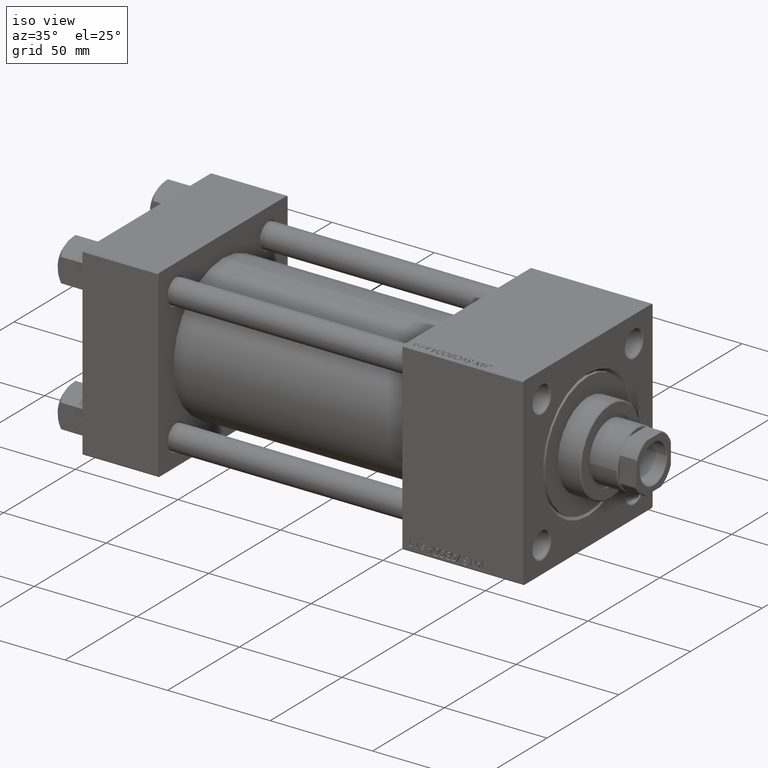
[diagram: clean part render]
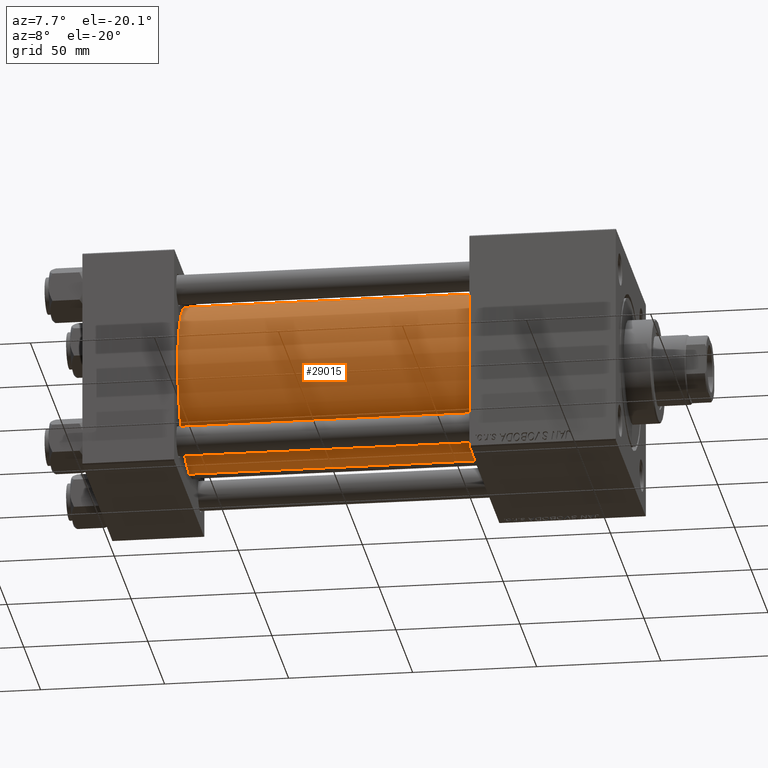
[diagram: tour spotlight — one face highlighted and labeled with its STEP entity id]
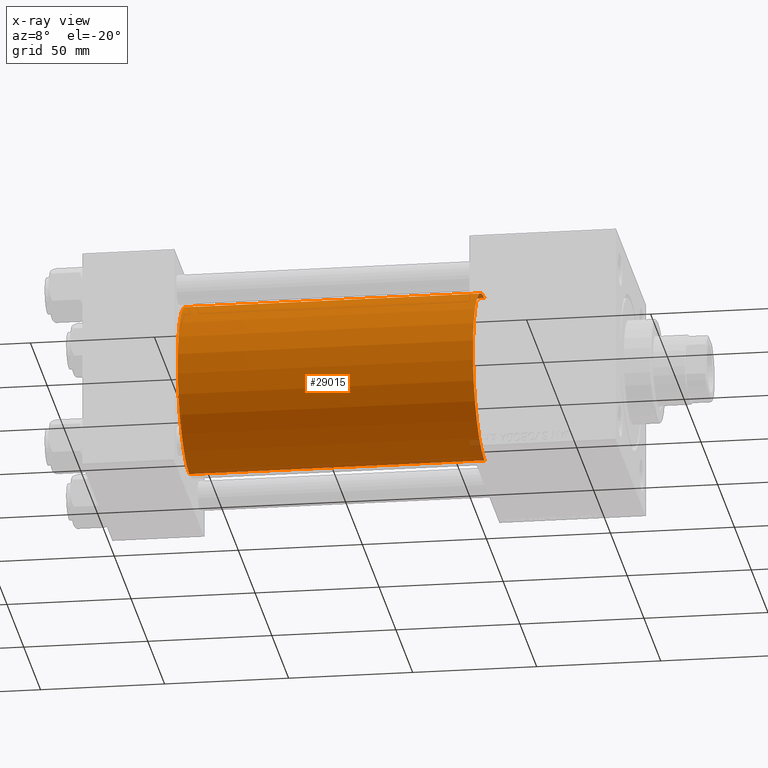
[diagram: x-ray of the same camera — body ghosted, this tour face saturated]
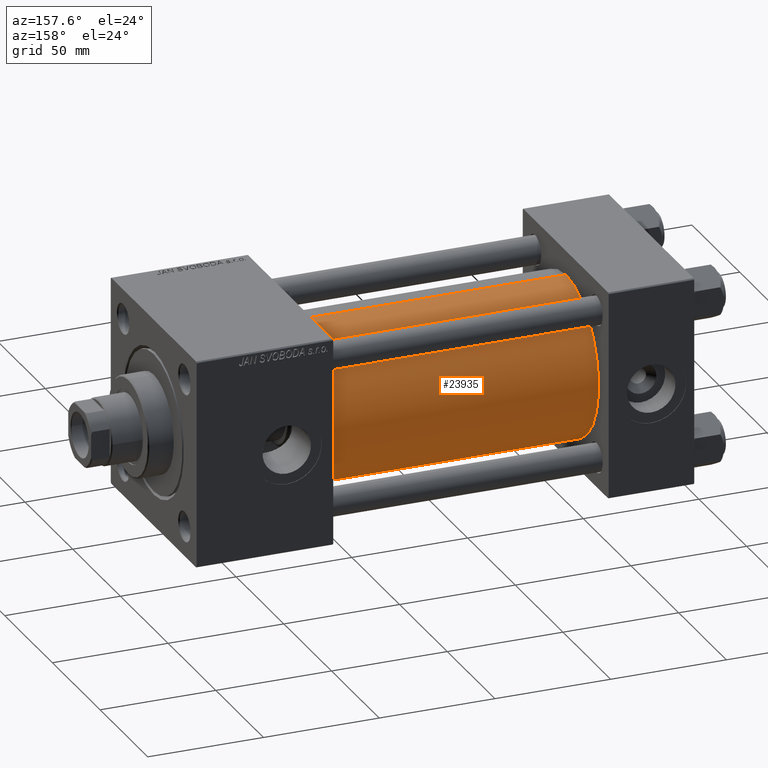
[diagram: tour spotlight — one face highlighted and labeled with its STEP entity id]
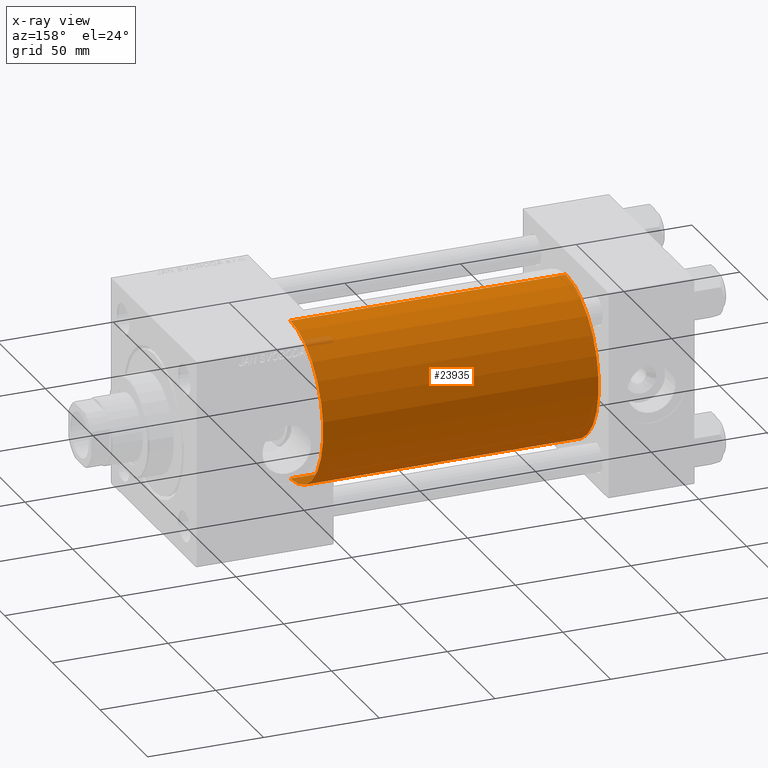
[diagram: x-ray of the same camera — body ghosted, this tour face saturated]
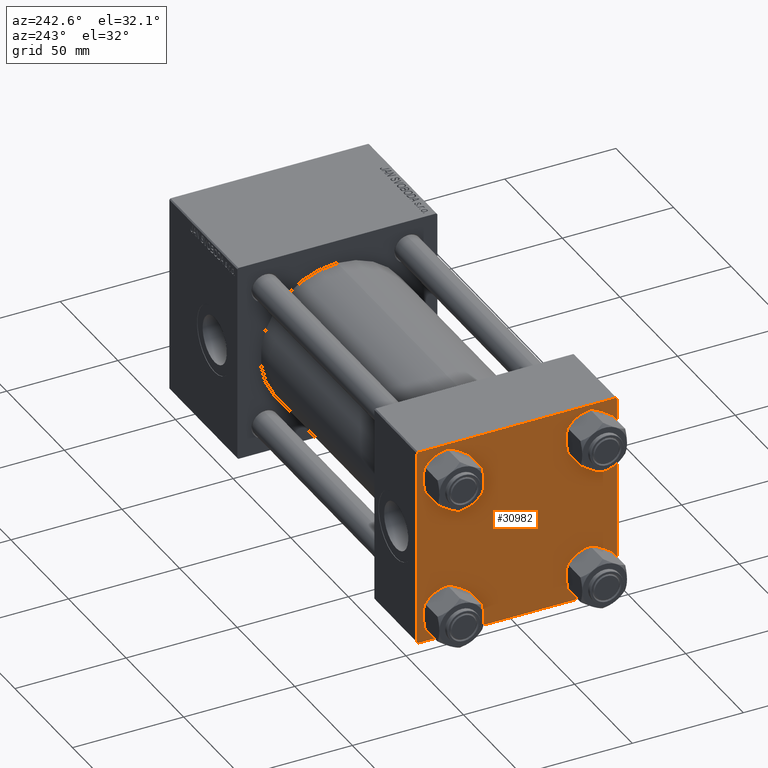
[diagram: tour spotlight — one face highlighted and labeled with its STEP entity id]
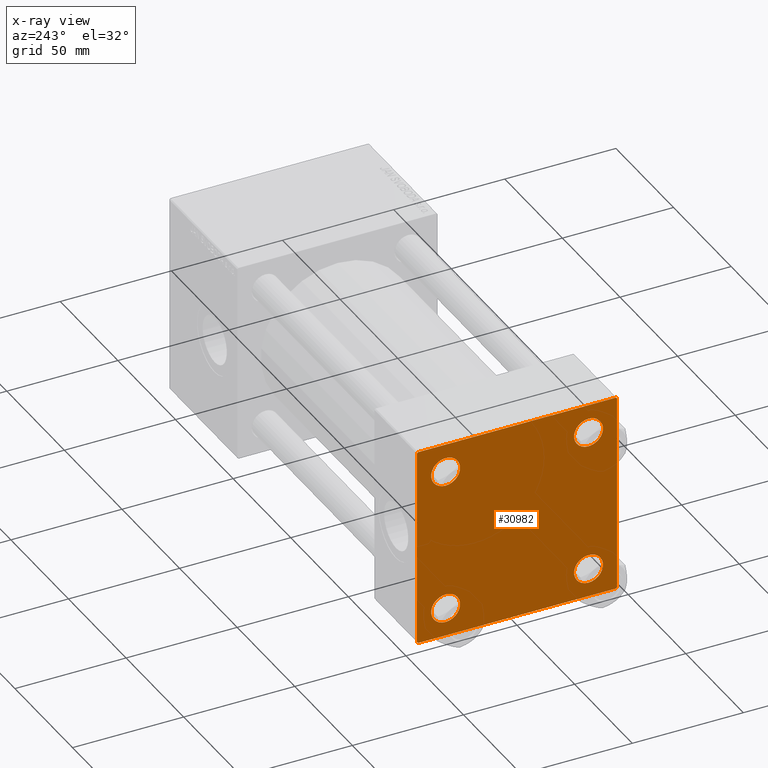
[diagram: x-ray of the same camera — body ghosted, this tour face saturated]
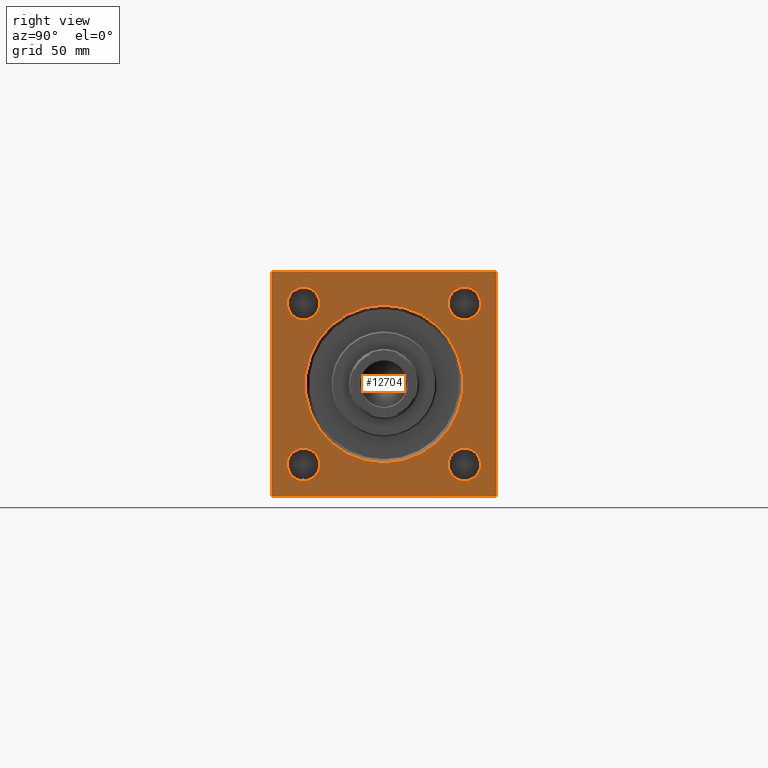
[diagram: tour spotlight — one face highlighted and labeled with its STEP entity id]
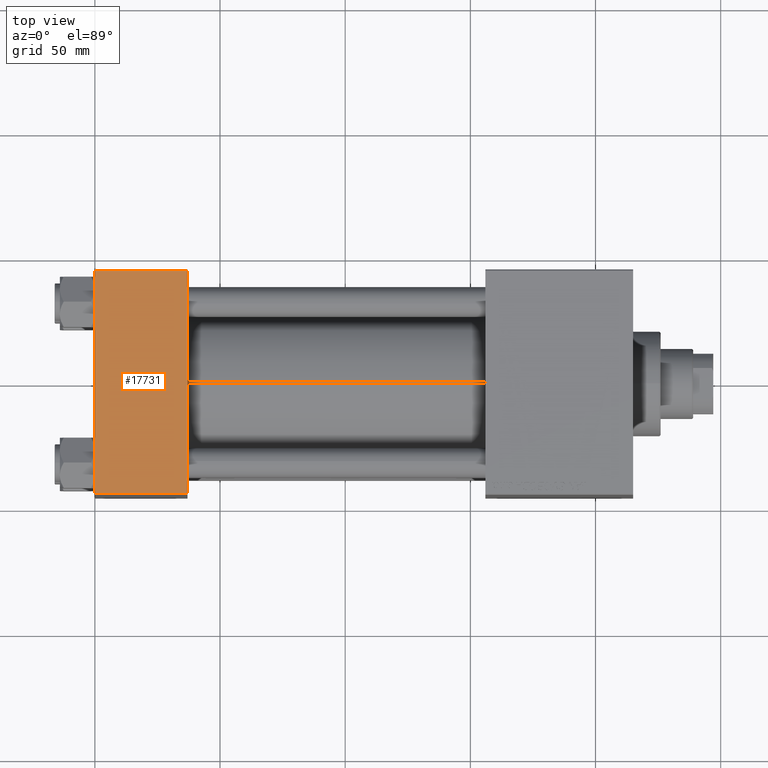
[diagram: tour spotlight — one face highlighted and labeled with its STEP entity id]
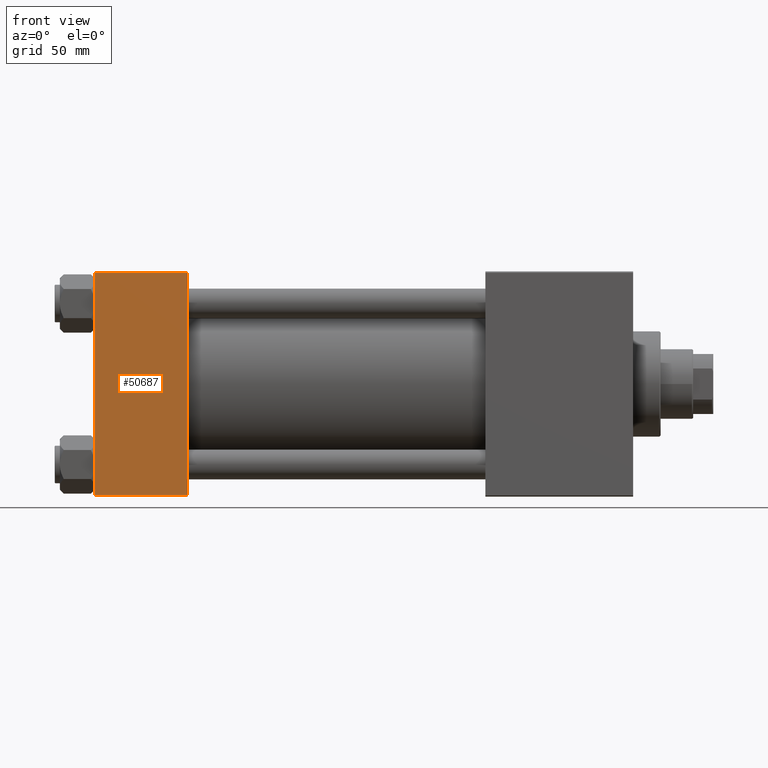
[diagram: tour spotlight — one face highlighted and labeled with its STEP entity id]
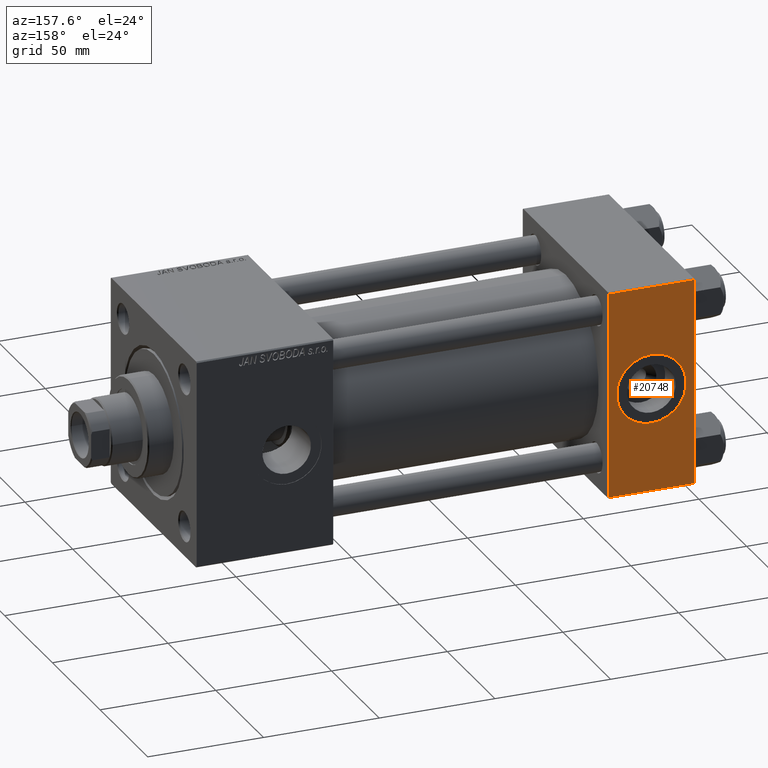
[diagram: tour spotlight — one face highlighted and labeled with its STEP entity id]
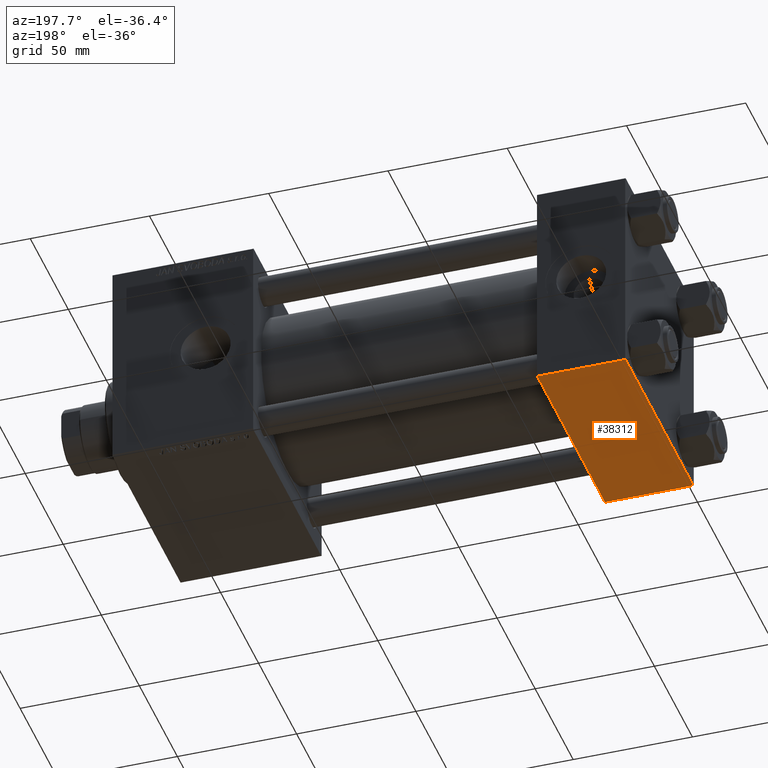
[diagram: tour spotlight — one face highlighted and labeled with its STEP entity id]
A machine part: a face-by-face anatomy tour. The part has 1182 B-rep faces; the first image is the clean iso view, then the 8 largest visible faces are spotlighted one at a time (largest first), each with its STEP entity span.

Face 1 — auxiliary view, entity #29015. An x-ray twin of the same camera follows (body ghosted, this face saturated) — the face is partly hidden behind the body. In plain terms, the highlighted cylindrical surface (partial cylindrical patch) has radius 34.5 mm, axis along (-1, -0, -0).
Definition (entity closure, byte-faithful):
#31 = LINE ( 'NONE', #556, #48640 ) ;
#556 = CARTESIAN_POINT ( 'NONE',  ( 156.0000000000000000, 1.622946243093158675E-15, -34.50000000000000000 ) ) ;
#1071 = DIRECTION ( 'NONE',  ( -1.000000000000000000, -0.000000000000000000, -0.000000000000000000 ) ) ;
#2619 = ORIENTED_EDGE ( 'NONE', *, *, #31752, .T. ) ;
#2702 = DIRECTION ( 'NONE',  ( -1.000000000000000000, -0.000000000000000000, -0.000000000000000000 ) ) ;
#3413 = DIRECTION ( 'NONE',  ( 1.000000000000000000, 0.000000000000000000, 0.000000000000000000 ) ) ;
#4380 = VERTEX_POINT ( 'NONE', #9038 ) ;
#5690 = VECTOR ( 'NONE', #1071, 1000.000000000000000 ) ;
#6608 = CARTESIAN_POINT ( 'NONE',  ( 156.0000000000000000, -2.602085213965210642E-15, 0.000000000000000000 ) ) ;
#6866 = DIRECTION ( 'NONE',  ( 0.000000000000000000, 0.000000000000000000, 1.000000000000000000 ) ) ;
#7864 = DIRECTION ( 'NONE',  ( 1.000000000000000000, -0.000000000000000000, 0.000000000000000000 ) ) ;
#9011 = AXIS2_PLACEMENT_3D ( 'NONE', #23401, #3413, #18998 ) ;
#9038 = CARTESIAN_POINT ( 'NONE',  ( 37.00000000000000711, 1.622946243093158675E-15, -34.50000000000000000 ) ) ;
#10213 = AXIS2_PLACEMENT_3D ( 'NONE', #25438, #7864, #31474 ) ;
#11007 = CYLINDRICAL_SURFACE ( 'NONE', #45444, 34.50000000000000000 ) ;
#18251 = EDGE_CURVE ( 'NONE', #29535, #4380, #26797, .T. ) ;
#18998 = DIRECTION ( 'NONE',  ( 0.000000000000000000, 0.000000000000000000, -1.000000000000000000 ) ) ;
#21760 = CARTESIAN_POINT ( 'NONE',  ( 156.0000000000000000, 1.622946243093158675E-15, -34.50000000000000000 ) ) ;
#23401 = CARTESIAN_POINT ( 'NONE',  ( 156.0000000000000000, -2.602085213965210642E-15, 0.000000000000000000 ) ) ;
#23629 = VERTEX_POINT ( 'NONE', #23703 ) ;
#23703 = CARTESIAN_POINT ( 'NONE',  ( 156.0000000000000000, -2.602085213965210642E-15, 34.50000000000000000 ) ) ;
#23766 = ORIENTED_EDGE ( 'NONE', *, *, #18251, .T. ) ;
#24280 = VERTEX_POINT ( 'NONE', #21760 ) ;
#25438 = CARTESIAN_POINT ( 'NONE',  ( 37.00000000000000711, -2.602085213965210642E-15, 0.000000000000000000 ) ) ;
#26630 = EDGE_CURVE ( 'NONE', #24280, #4380, #31, .T. ) ;
#26797 = CIRCLE ( 'NONE', #10213, 34.50000000000000000 ) ;
#29015 = ADVANCED_FACE ( 'NONE', ( #46607 ), #11007, .T. ) ;
#29535 = VERTEX_POINT ( 'NONE', #50447 ) ;
#30592 = ORIENTED_EDGE ( 'NONE', *, *, #31614, .F. ) ;
#31474 = DIRECTION ( 'NONE',  ( 0.000000000000000000, 0.000000000000000000, 1.000000000000000000 ) ) ;
#31614 = EDGE_CURVE ( 'NONE', #23629, #24280, #35519, .T. ) ;
#31752 = EDGE_CURVE ( 'NONE', #23629, #29535, #34213, .T. ) ;
#32215 = DIRECTION ( 'NONE',  ( -1.000000000000000000, -0.000000000000000000, -0.000000000000000000 ) ) ;
#32724 = ORIENTED_EDGE ( 'NONE', *, *, #26630, .F. ) ;
#34213 = LINE ( 'NONE', #36898, #5690 ) ;
#35519 = CIRCLE ( 'NONE', #9011, 34.50000000000000000 ) ;
#36898 = CARTESIAN_POINT ( 'NONE',  ( 156.0000000000000000, -2.602085213965210642E-15, 34.50000000000000000 ) ) ;
#43891 = EDGE_LOOP ( 'NONE', ( #32724, #30592, #2619, #23766 ) ) ;
#45444 = AXIS2_PLACEMENT_3D ( 'NONE', #6608, #2702, #6866 ) ;
#46607 = FACE_OUTER_BOUND ( 'NONE', #43891, .T. ) ;
#48640 = VECTOR ( 'NONE', #32215, 1000.000000000000000 ) ;
#50447 = CARTESIAN_POINT ( 'NONE',  ( 37.00000000000000711, -2.602085213965210642E-15, 34.50000000000000000 ) ) ;

Face 2 — auxiliary view, entity #23935. An x-ray twin of the same camera follows (body ghosted, this face saturated) — the face is partly hidden behind the body. In plain terms, the highlighted cylindrical surface (partial cylindrical patch) has radius 34.5 mm, axis along (-1, -0, -0).
Definition (entity closure, byte-faithful):
#31 = LINE ( 'NONE', #556, #48640 ) ;
#556 = CARTESIAN_POINT ( 'NONE',  ( 156.0000000000000000, 1.622946243093158675E-15, -34.50000000000000000 ) ) ;
#1071 = DIRECTION ( 'NONE',  ( -1.000000000000000000, -0.000000000000000000, -0.000000000000000000 ) ) ;
#4380 = VERTEX_POINT ( 'NONE', #9038 ) ;
#5690 = VECTOR ( 'NONE', #1071, 1000.000000000000000 ) ;
#7133 = DIRECTION ( 'NONE',  ( 1.000000000000000000, 0.000000000000000000, 0.000000000000000000 ) ) ;
#9038 = CARTESIAN_POINT ( 'NONE',  ( 37.00000000000000711, 1.622946243093158675E-15, -34.50000000000000000 ) ) ;
#12990 = FACE_OUTER_BOUND ( 'NONE', #21706, .T. ) ;
#13577 = CIRCLE ( 'NONE', #49289, 34.50000000000000000 ) ;
#14524 = ORIENTED_EDGE ( 'NONE', *, *, #22144, .T. ) ;
#16573 = ORIENTED_EDGE ( 'NONE', *, *, #31752, .F. ) ;
#19721 = EDGE_CURVE ( 'NONE', #24280, #23629, #13577, .T. ) ;
#20705 = ORIENTED_EDGE ( 'NONE', *, *, #19721, .F. ) ;
#20789 = CARTESIAN_POINT ( 'NONE',  ( 156.0000000000000000, -2.602085213965210642E-15, 0.000000000000000000 ) ) ;
#21320 = ORIENTED_EDGE ( 'NONE', *, *, #26630, .T. ) ;
#21706 = EDGE_LOOP ( 'NONE', ( #20705, #21320, #14524, #16573 ) ) ;
#21760 = CARTESIAN_POINT ( 'NONE',  ( 156.0000000000000000, 1.622946243093158675E-15, -34.50000000000000000 ) ) ;
#22144 = EDGE_CURVE ( 'NONE', #4380, #29535, #46008, .T. ) ;
#23629 = VERTEX_POINT ( 'NONE', #23703 ) ;
#23703 = CARTESIAN_POINT ( 'NONE',  ( 156.0000000000000000, -2.602085213965210642E-15, 34.50000000000000000 ) ) ;
#23935 = ADVANCED_FACE ( 'NONE', ( #12990 ), #24930, .T. ) ;
#24280 = VERTEX_POINT ( 'NONE', #21760 ) ;
#24930 = CYLINDRICAL_SURFACE ( 'NONE', #47739, 34.50000000000000000 ) ;
#26630 = EDGE_CURVE ( 'NONE', #24280, #4380, #31, .T. ) ;
#29535 = VERTEX_POINT ( 'NONE', #50447 ) ;
#30138 = DIRECTION ( 'NONE',  ( 0.000000000000000000, 0.000000000000000000, 1.000000000000000000 ) ) ;
#31752 = EDGE_CURVE ( 'NONE', #23629, #29535, #34213, .T. ) ;
#32215 = DIRECTION ( 'NONE',  ( -1.000000000000000000, -0.000000000000000000, -0.000000000000000000 ) ) ;
#34213 = LINE ( 'NONE', #36898, #5690 ) ;
#36898 = CARTESIAN_POINT ( 'NONE',  ( 156.0000000000000000, -2.602085213965210642E-15, 34.50000000000000000 ) ) ;
#39326 = CARTESIAN_POINT ( 'NONE',  ( 156.0000000000000000, -2.602085213965210642E-15, 0.000000000000000000 ) ) ;
#40574 = CARTESIAN_POINT ( 'NONE',  ( 37.00000000000000711, -2.602085213965210642E-15, 0.000000000000000000 ) ) ;
#44332 = AXIS2_PLACEMENT_3D ( 'NONE', #40574, #45768, #30138 ) ;
#45768 = DIRECTION ( 'NONE',  ( 1.000000000000000000, -0.000000000000000000, 0.000000000000000000 ) ) ;
#46008 = CIRCLE ( 'NONE', #44332, 34.50000000000000000 ) ;
#47739 = AXIS2_PLACEMENT_3D ( 'NONE', #20789, #49635, #49124 ) ;
#48640 = VECTOR ( 'NONE', #32215, 1000.000000000000000 ) ;
#49124 = DIRECTION ( 'NONE',  ( 0.000000000000000000, 0.000000000000000000, 1.000000000000000000 ) ) ;
#49289 = AXIS2_PLACEMENT_3D ( 'NONE', #39326, #7133, #50781 ) ;
#49635 = DIRECTION ( 'NONE',  ( -1.000000000000000000, -0.000000000000000000, -0.000000000000000000 ) ) ;
#50447 = CARTESIAN_POINT ( 'NONE',  ( 37.00000000000000711, -2.602085213965210642E-15, 34.50000000000000000 ) ) ;
#50781 = DIRECTION ( 'NONE',  ( 0.000000000000000000, 0.000000000000000000, -1.000000000000000000 ) ) ;

Face 3 — auxiliary view, entity #30982. An x-ray twin of the same camera follows (body ghosted, this face saturated) — the face is partly hidden behind the body. In plain terms, the highlighted planar face has unit normal (-1, 0, 0).
Definition (entity closure, byte-faithful):
#1029 = EDGE_LOOP ( 'NONE', ( #16488, #17004 ) ) ;
#1039 = ORIENTED_EDGE ( 'NONE', *, *, #2225, .T. ) ;
#1574 = CARTESIAN_POINT ( 'NONE',  ( 0.000000000000000000, -32.14999999999997726, -32.15000000000001279 ) ) ;
#2140 = EDGE_CURVE ( 'NONE', #33545, #14707, #22920, .T. ) ;
#2186 = EDGE_CURVE ( 'NONE', #46970, #41015, #4077, .T. ) ;
#2225 = EDGE_CURVE ( 'NONE', #28891, #3553, #25676, .T. ) ;
#3553 = VERTEX_POINT ( 'NONE', #41171 ) ;
#3731 = EDGE_CURVE ( 'NONE', #46404, #49130, #17196, .T. ) ;
#3784 = EDGE_CURVE ( 'NONE', #25651, #17943, #43102, .T. ) ;
#4077 = CIRCLE ( 'NONE', #49738, 6.500000000000019540 ) ;
#5364 = CIRCLE ( 'NONE', #6187, 6.499999999999977796 ) ;
#5848 = CARTESIAN_POINT ( 'NONE',  ( 0.000000000000000000, 44.99999999999998579, -44.49999999999995737 ) ) ;
#6187 = AXIS2_PLACEMENT_3D ( 'NONE', #26881, #31524, #47159 ) ;
#7326 = ORIENTED_EDGE ( 'NONE', *, *, #41993, .T. ) ;
#8008 = ORIENTED_EDGE ( 'NONE', *, *, #24776, .T. ) ;
#8012 = LINE ( 'NONE', #16578, #41771 ) ;
#8136 = LINE ( 'NONE', #39073, #18961 ) ;
#8218 = CARTESIAN_POINT ( 'NONE',  ( 0.000000000000000000, -32.14999999999997726, -38.64999999999999147 ) ) ;
#8565 = CIRCLE ( 'NONE', #29331, 6.499999999999977796 ) ;
#9144 = LINE ( 'NONE', #12519, #50140 ) ;
#10055 = VECTOR ( 'NONE', #12528, 1000.000000000000114 ) ;
#10199 = EDGE_LOOP ( 'NONE', ( #22674, #32191 ) ) ;
#10430 = CARTESIAN_POINT ( 'NONE',  ( 0.000000000000000000, 44.49999999999998579, 45.00000000000001421 ) ) ;
#10573 = VERTEX_POINT ( 'NONE', #8218 ) ;
#11271 = AXIS2_PLACEMENT_3D ( 'NONE', #1574, #25461, #45482 ) ;
#11468 = CARTESIAN_POINT ( 'NONE',  ( 0.000000000000000000, 44.99999999999998579, 44.50000000000001421 ) ) ;
#12048 = DIRECTION ( 'NONE',  ( 0.000000000000000000, 0.7071067811865474617, -0.7071067811865474617 ) ) ;
#12519 = CARTESIAN_POINT ( 'NONE',  ( 0.000000000000000000, -44.74999999999998579, -44.74999999999998579 ) ) ;
#12528 = DIRECTION ( 'NONE',  ( -0.000000000000000000, -0.7071067811865474617, -0.7071067811865474617 ) ) ;
#12684 = DIRECTION ( 'NONE',  ( 1.000000000000000000, -0.000000000000000000, 0.000000000000000000 ) ) ;
#12784 = CARTESIAN_POINT ( 'NONE',  ( 0.000000000000000000, 44.74999999999998579, -44.74999999999998579 ) ) ;
#12787 = DIRECTION ( 'NONE',  ( 1.000000000000000000, -0.000000000000000000, 0.000000000000000000 ) ) ;
#13322 = VERTEX_POINT ( 'NONE', #10430 ) ;
#13749 = CARTESIAN_POINT ( 'NONE',  ( 0.000000000000000000, -32.14999999999997726, 32.15000000000001279 ) ) ;
#13825 = CARTESIAN_POINT ( 'NONE',  ( 0.000000000000000000, 32.14999999999999147, -32.15000000000000568 ) ) ;
#14573 = CIRCLE ( 'NONE', #24530, 6.499999999999977796 ) ;
#14707 = VERTEX_POINT ( 'NONE', #14972 ) ;
#14909 = ORIENTED_EDGE ( 'NONE', *, *, #3731, .F. ) ;
#14972 = CARTESIAN_POINT ( 'NONE',  ( 0.000000000000000000, -44.49999999999995737, -45.00000000000000000 ) ) ;
#15106 = CARTESIAN_POINT ( 'NONE',  ( 0.000000000000000000, 32.14999999999999147, -32.15000000000000568 ) ) ;
#15279 = CARTESIAN_POINT ( 'NONE',  ( 0.000000000000000000, -32.14999999999997726, -25.65000000000003411 ) ) ;
#15998 = DIRECTION ( 'NONE',  ( -0.000000000000000000, 0.000000000000000000, 1.000000000000000000 ) ) ;
#16142 = VECTOR ( 'NONE', #33023, 1000.000000000000114 ) ;
#16258 = FACE_OUTER_BOUND ( 'NONE', #16909, .T. ) ;
#16418 = AXIS2_PLACEMENT_3D ( 'NONE', #44323, #32074, #15998 ) ;
#16488 = ORIENTED_EDGE ( 'NONE', *, *, #20096, .T. ) ;
#16578 = CARTESIAN_POINT ( 'NONE',  ( 0.000000000000000000, 44.99999999999998579, 45.00000000000001421 ) ) ;
#16836 = ORIENTED_EDGE ( 'NONE', *, *, #48833, .T. ) ;
#16909 = EDGE_LOOP ( 'NONE', ( #27517, #7326, #45631, #16836, #14909, #20565, #18077, #25499 ) ) ;
#17004 = ORIENTED_EDGE ( 'NONE', *, *, #3784, .T. ) ;
#17037 = FACE_BOUND ( 'NONE', #35290, .T. ) ;
#17196 = LINE ( 'NONE', #37449, #22364 ) ;
#17198 = CARTESIAN_POINT ( 'NONE',  ( -0.000000000000000000, -44.75000000000029843, 44.74999999999967315 ) ) ;
#17641 = DIRECTION ( 'NONE',  ( 0.000000000000000000, 0.000000000000000000, 1.000000000000000000 ) ) ;
#17851 = DIRECTION ( 'NONE',  ( 0.000000000000000000, 0.000000000000000000, 1.000000000000000000 ) ) ;
#17943 = VERTEX_POINT ( 'NONE', #22904 ) ;
#18077 = ORIENTED_EDGE ( 'NONE', *, *, #33227, .F. ) ;
#18961 = VECTOR ( 'NONE', #20348, 1000.000000000000000 ) ;
#19407 = CIRCLE ( 'NONE', #48475, 6.500000000000019540 ) ;
#19530 = CIRCLE ( 'NONE', #11271, 6.499999999999977796 ) ;
#20096 = EDGE_CURVE ( 'NONE', #17943, #25651, #8565, .T. ) ;
#20310 = EDGE_CURVE ( 'NONE', #34404, #20808, #8012, .T. ) ;
#20348 = DIRECTION ( 'NONE',  ( 0.000000000000000000, -1.000000000000000000, -1.541976423090495387E-16 ) ) ;
#20565 = ORIENTED_EDGE ( 'NONE', *, *, #49990, .T. ) ;
#20808 = VERTEX_POINT ( 'NONE', #5848 ) ;
#20991 = ORIENTED_EDGE ( 'NONE', *, *, #21726, .T. ) ;
#21726 = EDGE_CURVE ( 'NONE', #42508, #10573, #5364, .T. ) ;
#22334 = AXIS2_PLACEMENT_3D ( 'NONE', #44220, #41795, #17641 ) ;
#22364 = VECTOR ( 'NONE', #33022, 1000.000000000000000 ) ;
#22674 = ORIENTED_EDGE ( 'NONE', *, *, #2186, .T. ) ;
#22904 = CARTESIAN_POINT ( 'NONE',  ( 0.000000000000000000, 32.14999999999999147, -25.65000000000002700 ) ) ;
#22920 = LINE ( 'NONE', #38783, #38094 ) ;
#23932 = DIRECTION ( 'NONE',  ( 0.000000000000000000, -0.7071067811865474617, 0.7071067811865474617 ) ) ;
#24203 = LINE ( 'NONE', #12784, #10055 ) ;
#24530 = AXIS2_PLACEMENT_3D ( 'NONE', #27483, #12684, #35790 ) ;
#24776 = EDGE_CURVE ( 'NONE', #10573, #42508, #19530, .T. ) ;
#24953 = EDGE_CURVE ( 'NONE', #3553, #28891, #14573, .T. ) ;
#25048 = VECTOR ( 'NONE', #12048, 1000.000000000000114 ) ;
#25283 = CARTESIAN_POINT ( 'NONE',  ( 0.000000000000000000, 32.14999999999999147, -38.64999999999998437 ) ) ;
#25376 = CARTESIAN_POINT ( 'NONE',  ( 0.000000000000000000, -32.14999999999997726, 32.15000000000001279 ) ) ;
#25461 = DIRECTION ( 'NONE',  ( 1.000000000000000000, -0.000000000000000000, 0.000000000000000000 ) ) ;
#25499 = ORIENTED_EDGE ( 'NONE', *, *, #44214, .T. ) ;
#25629 = DIRECTION ( 'NONE',  ( 1.000000000000000000, -0.000000000000000000, 0.000000000000000000 ) ) ;
#25651 = VERTEX_POINT ( 'NONE', #25283 ) ;
#25676 = CIRCLE ( 'NONE', #22334, 6.499999999999977796 ) ;
#26563 = CARTESIAN_POINT ( 'NONE',  ( 0.000000000000000000, -32.14999999999997726, 25.64999999999999147 ) ) ;
#26798 = CARTESIAN_POINT ( 'NONE',  ( 0.000000000000000000, -32.14999999999997726, 38.65000000000003411 ) ) ;
#26881 = CARTESIAN_POINT ( 'NONE',  ( 0.000000000000000000, -32.14999999999997726, -32.15000000000001279 ) ) ;
#27481 = DIRECTION ( 'NONE',  ( 0.000000000000000000, 0.000000000000000000, -1.000000000000000000 ) ) ;
#27483 = CARTESIAN_POINT ( 'NONE',  ( 0.000000000000000000, 32.14999999999999147, 32.15000000000000568 ) ) ;
#27517 = ORIENTED_EDGE ( 'NONE', *, *, #20310, .T. ) ;
#27928 = PLANE ( 'NONE',  #16418 ) ;
#28175 = AXIS2_PLACEMENT_3D ( 'NONE', #13825, #12787, #40590 ) ;
#28891 = VERTEX_POINT ( 'NONE', #31977 ) ;
#29331 = AXIS2_PLACEMENT_3D ( 'NONE', #15106, #34835, #35339 ) ;
#30220 = ORIENTED_EDGE ( 'NONE', *, *, #24953, .T. ) ;
#30982 = ADVANCED_FACE ( 'NONE', ( #36243, #44060, #32601, #17037, #16258 ), #27928, .T. ) ;
#31210 = DIRECTION ( 'NONE',  ( 0.000000000000000000, -1.000000000000000000, -1.541976423090495633E-16 ) ) ;
#31355 = VERTEX_POINT ( 'NONE', #39582 ) ;
#31524 = DIRECTION ( 'NONE',  ( 1.000000000000000000, -0.000000000000000000, 0.000000000000000000 ) ) ;
#31767 = LINE ( 'NONE', #47658, #25048 ) ;
#31977 = CARTESIAN_POINT ( 'NONE',  ( 0.000000000000000000, 32.14999999999999147, 25.65000000000002700 ) ) ;
#32074 = DIRECTION ( 'NONE',  ( -1.000000000000000000, 0.000000000000000000, -0.000000000000000000 ) ) ;
#32191 = ORIENTED_EDGE ( 'NONE', *, *, #49348, .T. ) ;
#32236 = DIRECTION ( 'NONE',  ( 1.000000000000000000, -0.000000000000000000, 0.000000000000000000 ) ) ;
#32601 = FACE_BOUND ( 'NONE', #1029, .T. ) ;
#33022 = DIRECTION ( 'NONE',  ( 0.000000000000000000, 7.709882115452476934E-17, -1.000000000000000000 ) ) ;
#33023 = DIRECTION ( 'NONE',  ( -0.000000000000000000, 0.7071067811865425767, 0.7071067811865524577 ) ) ;
#33227 = EDGE_CURVE ( 'NONE', #13322, #31355, #8136, .T. ) ;
#33545 = VERTEX_POINT ( 'NONE', #35584 ) ;
#34404 = VERTEX_POINT ( 'NONE', #11468 ) ;
#34835 = DIRECTION ( 'NONE',  ( 1.000000000000000000, -0.000000000000000000, 0.000000000000000000 ) ) ;
#35290 = EDGE_LOOP ( 'NONE', ( #30220, #1039 ) ) ;
#35339 = DIRECTION ( 'NONE',  ( 0.000000000000000000, 0.000000000000000000, 1.000000000000000000 ) ) ;
#35497 = CARTESIAN_POINT ( 'NONE',  ( 0.000000000000000000, -45.00000000000000000, -44.49999999999995737 ) ) ;
#35584 = CARTESIAN_POINT ( 'NONE',  ( 0.000000000000000000, 44.49999999999998579, -44.99999999999998579 ) ) ;
#35790 = DIRECTION ( 'NONE',  ( 0.000000000000000000, 0.000000000000000000, 1.000000000000000000 ) ) ;
#36243 = FACE_BOUND ( 'NONE', #10199, .T. ) ;
#36935 = LINE ( 'NONE', #17198, #16142 ) ;
#37449 = CARTESIAN_POINT ( 'NONE',  ( 0.000000000000000000, -45.00000000000000711, 45.00000000000000000 ) ) ;
#38094 = VECTOR ( 'NONE', #31210, 1000.000000000000000 ) ;
#38783 = CARTESIAN_POINT ( 'NONE',  ( 0.000000000000000000, 44.99999999999998579, -44.99999999999998579 ) ) ;
#39073 = CARTESIAN_POINT ( 'NONE',  ( 0.000000000000000000, 44.99999999999998579, 45.00000000000001421 ) ) ;
#39582 = CARTESIAN_POINT ( 'NONE',  ( 0.000000000000000000, -44.49999999999995737, 45.00000000000000000 ) ) ;
#40590 = DIRECTION ( 'NONE',  ( 0.000000000000000000, 0.000000000000000000, 1.000000000000000000 ) ) ;
#41015 = VERTEX_POINT ( 'NONE', #26563 ) ;
#41171 = CARTESIAN_POINT ( 'NONE',  ( 0.000000000000000000, 32.14999999999999147, 38.64999999999999147 ) ) ;
#41771 = VECTOR ( 'NONE', #27481, 1000.000000000000000 ) ;
#41795 = DIRECTION ( 'NONE',  ( 1.000000000000000000, -0.000000000000000000, 0.000000000000000000 ) ) ;
#41993 = EDGE_CURVE ( 'NONE', #20808, #33545, #24203, .T. ) ;
#42274 = CARTESIAN_POINT ( 'NONE',  ( 0.000000000000000000, -45.00000000000000711, 44.49999999999997158 ) ) ;
#42508 = VERTEX_POINT ( 'NONE', #15279 ) ;
#43102 = CIRCLE ( 'NONE', #28175, 6.499999999999977796 ) ;
#44060 = FACE_BOUND ( 'NONE', #48012, .T. ) ;
#44214 = EDGE_CURVE ( 'NONE', #13322, #34404, #31767, .T. ) ;
#44220 = CARTESIAN_POINT ( 'NONE',  ( 0.000000000000000000, 32.14999999999999147, 32.15000000000000568 ) ) ;
#44323 = CARTESIAN_POINT ( 'NONE',  ( 0.000000000000000000, 0.000000000000000000, 0.000000000000000000 ) ) ;
#45482 = DIRECTION ( 'NONE',  ( 0.000000000000000000, 0.000000000000000000, 1.000000000000000000 ) ) ;
#45631 = ORIENTED_EDGE ( 'NONE', *, *, #2140, .T. ) ;
#45704 = DIRECTION ( 'NONE',  ( 0.000000000000000000, 0.000000000000000000, 1.000000000000000000 ) ) ;
#46404 = VERTEX_POINT ( 'NONE', #42274 ) ;
#46970 = VERTEX_POINT ( 'NONE', #26798 ) ;
#47159 = DIRECTION ( 'NONE',  ( 0.000000000000000000, 0.000000000000000000, 1.000000000000000000 ) ) ;
#47658 = CARTESIAN_POINT ( 'NONE',  ( 0.000000000000000000, 44.74999999999999289, 44.74999999999999289 ) ) ;
#48012 = EDGE_LOOP ( 'NONE', ( #20991, #8008 ) ) ;
#48475 = AXIS2_PLACEMENT_3D ( 'NONE', #25376, #25629, #17851 ) ;
#48833 = EDGE_CURVE ( 'NONE', #14707, #49130, #9144, .T. ) ;
#49130 = VERTEX_POINT ( 'NONE', #35497 ) ;
#49348 = EDGE_CURVE ( 'NONE', #41015, #46970, #19407, .T. ) ;
#49738 = AXIS2_PLACEMENT_3D ( 'NONE', #13749, #32236, #45704 ) ;
#49990 = EDGE_CURVE ( 'NONE', #46404, #31355, #36935, .T. ) ;
#50140 = VECTOR ( 'NONE', #23932, 1000.000000000000114 ) ;

Face 4 — right view, entity #12704. In plain terms, the highlighted planar face has unit normal (-1, 0, 0).
Definition (entity closure, byte-faithful):
#26 = DIRECTION ( 'NONE',  ( -1.000000000000000000, -0.000000000000000000, -0.000000000000000000 ) ) ;
#191 = CARTESIAN_POINT ( 'NONE',  ( 215.0000000000000000, -32.15000000000001279, -38.64999999999999147 ) ) ;
#327 = DIRECTION ( 'NONE',  ( 0.000000000000000000, 0.000000000000000000, 1.000000000000000000 ) ) ;
#375 = CARTESIAN_POINT ( 'NONE',  ( 215.0000000000000000, 32.14999999999999147, 38.64999999999997726 ) ) ;
#395 = EDGE_CURVE ( 'NONE', #27155, #49200, #41335, .T. ) ;
#705 = CIRCLE ( 'NONE', #50515, 31.49999999999997158 ) ;
#867 = AXIS2_PLACEMENT_3D ( 'NONE', #1345, #48383, #8622 ) ;
#1170 = ORIENTED_EDGE ( 'NONE', *, *, #27704, .F. ) ;
#1254 = VERTEX_POINT ( 'NONE', #27288 ) ;
#1345 = CARTESIAN_POINT ( 'NONE',  ( 215.0000000000000000, -32.15000000000001279, -32.15000000000000568 ) ) ;
#1819 = VERTEX_POINT ( 'NONE', #25550 ) ;
#2034 = DIRECTION ( 'NONE',  ( -1.000000000000000000, -0.000000000000000000, -0.000000000000000000 ) ) ;
#2312 = EDGE_LOOP ( 'NONE', ( #31912, #47695 ) ) ;
#2760 = DIRECTION ( 'NONE',  ( -0.000000000000000000, 0.000000000000000000, 1.000000000000000000 ) ) ;
#3578 = EDGE_CURVE ( 'NONE', #11137, #1254, #18785, .T. ) ;
#4184 = CIRCLE ( 'NONE', #867, 6.499999999999977796 ) ;
#4210 = VERTEX_POINT ( 'NONE', #7491 ) ;
#4468 = CIRCLE ( 'NONE', #31801, 31.49999999999997158 ) ;
#4606 = CIRCLE ( 'NONE', #32767, 6.499999999999977796 ) ;
#4631 = DIRECTION ( 'NONE',  ( -1.000000000000000000, -0.000000000000000000, -0.000000000000000000 ) ) ;
#4791 = LINE ( 'NONE', #48969, #38745 ) ;
#4977 = CARTESIAN_POINT ( 'NONE',  ( 215.0000000000000000, 32.14999999999999147, -38.64999999999999147 ) ) ;
#5034 = EDGE_CURVE ( 'NONE', #21224, #7736, #23588, .T. ) ;
#5244 = EDGE_CURVE ( 'NONE', #6677, #13398, #29777, .T. ) ;
#5495 = VERTEX_POINT ( 'NONE', #20157 ) ;
#6468 = CARTESIAN_POINT ( 'NONE',  ( 215.0000000000000000, 0.000000000000000000, 0.000000000000000000 ) ) ;
#6677 = VERTEX_POINT ( 'NONE', #4977 ) ;
#6803 = AXIS2_PLACEMENT_3D ( 'NONE', #38857, #38347, #2760 ) ;
#7441 = EDGE_CURVE ( 'NONE', #8710, #32937, #20737, .T. ) ;
#7491 = CARTESIAN_POINT ( 'NONE',  ( 215.0000000000000000, -32.14999999999999147, 38.64999999999997016 ) ) ;
#7736 = VERTEX_POINT ( 'NONE', #18323 ) ;
#7985 = LINE ( 'NONE', #27458, #14289 ) ;
#8023 = ORIENTED_EDGE ( 'NONE', *, *, #10370, .T. ) ;
#8067 = DIRECTION ( 'NONE',  ( 0.000000000000000000, 0.000000000000000000, 1.000000000000000000 ) ) ;
#8622 = DIRECTION ( 'NONE',  ( 0.000000000000000000, 0.000000000000000000, 1.000000000000000000 ) ) ;
#8710 = VERTEX_POINT ( 'NONE', #375 ) ;
#9152 = EDGE_CURVE ( 'NONE', #49200, #27155, #4184, .T. ) ;
#9300 = DIRECTION ( 'NONE',  ( -0.000000000000000000, 0.7071067811865474617, 0.7071067811865474617 ) ) ;
#9640 = ORIENTED_EDGE ( 'NONE', *, *, #18281, .T. ) ;
#9928 = VECTOR ( 'NONE', #34627, 1000.000000000000114 ) ;
#10370 = EDGE_CURVE ( 'NONE', #1254, #47104, #46962, .T. ) ;
#10379 = VERTEX_POINT ( 'NONE', #30825 ) ;
#10796 = LINE ( 'NONE', #46397, #49999 ) ;
#11137 = VERTEX_POINT ( 'NONE', #39534 ) ;
#11316 = ORIENTED_EDGE ( 'NONE', *, *, #7441, .T. ) ;
#11566 = FACE_BOUND ( 'NONE', #23136, .T. ) ;
#12217 = VECTOR ( 'NONE', #9300, 1000.000000000000114 ) ;
#12382 = CARTESIAN_POINT ( 'NONE',  ( 215.0000000000000000, 3.857637417314158745E-15, 31.49999999999997158 ) ) ;
#12704 = ADVANCED_FACE ( 'NONE', ( #11566, #43258, #14956, #23502, #30783, #31040 ), #22488, .F. ) ;
#12827 = EDGE_LOOP ( 'NONE', ( #8023, #21821, #1170, #50398, #23600, #39385, #26830, #15193 ) ) ;
#13398 = VERTEX_POINT ( 'NONE', #23372 ) ;
#13702 = EDGE_CURVE ( 'NONE', #10379, #11137, #7985, .T. ) ;
#13958 = CARTESIAN_POINT ( 'NONE',  ( 215.0000000000000000, 45.00000000000001421, -44.50000000000000000 ) ) ;
#14110 = AXIS2_PLACEMENT_3D ( 'NONE', #41525, #26, #31692 ) ;
#14289 = VECTOR ( 'NONE', #19666, 1000.000000000000000 ) ;
#14735 = CARTESIAN_POINT ( 'NONE',  ( 215.0000000000000000, 32.14999999999999147, -32.15000000000000568 ) ) ;
#14809 = CARTESIAN_POINT ( 'NONE',  ( 215.0000000000000000, 45.00000000000001421, -45.00000000000000000 ) ) ;
#14956 = FACE_BOUND ( 'NONE', #35972, .T. ) ;
#14995 = DIRECTION ( 'NONE',  ( 0.000000000000000000, 7.709882115452478166E-17, -1.000000000000000000 ) ) ;
#15193 = ORIENTED_EDGE ( 'NONE', *, *, #3578, .T. ) ;
#15300 = DIRECTION ( 'NONE',  ( 0.000000000000000000, 0.000000000000000000, -1.000000000000000000 ) ) ;
#16243 = DIRECTION ( 'NONE',  ( 0.000000000000000000, 0.000000000000000000, 1.000000000000000000 ) ) ;
#16896 = DIRECTION ( 'NONE',  ( -1.000000000000000000, -0.000000000000000000, -0.000000000000000000 ) ) ;
#17240 = ORIENTED_EDGE ( 'NONE', *, *, #24205, .T. ) ;
#17388 = DIRECTION ( 'NONE',  ( -1.000000000000000000, -0.000000000000000000, -0.000000000000000000 ) ) ;
#17600 = ORIENTED_EDGE ( 'NONE', *, *, #9152, .T. ) ;
#18281 = EDGE_CURVE ( 'NONE', #4210, #25435, #24273, .T. ) ;
#18323 = CARTESIAN_POINT ( 'NONE',  ( 215.0000000000000000, 45.00000000000001421, -44.49999999999997158 ) ) ;
#18785 = LINE ( 'NONE', #46602, #9928 ) ;
#19465 = DIRECTION ( 'NONE',  ( 0.000000000000000000, -1.000000000000000000, 0.000000000000000000 ) ) ;
#19666 = DIRECTION ( 'NONE',  ( 0.000000000000000000, -1.000000000000000000, -1.541976423090495140E-16 ) ) ;
#20157 = CARTESIAN_POINT ( 'NONE',  ( 215.0000000000000000, 0.000000000000000000, -31.49999999999997158 ) ) ;
#20737 = CIRCLE ( 'NONE', #14110, 6.499999999999970690 ) ;
#20977 = ORIENTED_EDGE ( 'NONE', *, *, #46528, .T. ) ;
#21010 = CARTESIAN_POINT ( 'NONE',  ( 215.0000000000000000, 45.00000000000001421, 44.50000000000000000 ) ) ;
#21168 = DIRECTION ( 'NONE',  ( -1.000000000000000000, -0.000000000000000000, -0.000000000000000000 ) ) ;
#21224 = VERTEX_POINT ( 'NONE', #21010 ) ;
#21368 = VERTEX_POINT ( 'NONE', #12382 ) ;
#21821 = ORIENTED_EDGE ( 'NONE', *, *, #28668, .T. ) ;
#22224 = DIRECTION ( 'NONE',  ( 0.000000000000000000, -0.7071067811865474617, 0.7071067811865474617 ) ) ;
#22428 = ORIENTED_EDGE ( 'NONE', *, *, #395, .T. ) ;
#22480 = VECTOR ( 'NONE', #14995, 1000.000000000000000 ) ;
#22488 = PLANE ( 'NONE',  #6803 ) ;
#23009 = EDGE_LOOP ( 'NONE', ( #39364, #20977 ) ) ;
#23047 = DIRECTION ( 'NONE',  ( 0.000000000000000000, 0.000000000000000000, 1.000000000000000000 ) ) ;
#23126 = AXIS2_PLACEMENT_3D ( 'NONE', #14735, #2034, #30552 ) ;
#23136 = EDGE_LOOP ( 'NONE', ( #49012, #11316 ) ) ;
#23372 = CARTESIAN_POINT ( 'NONE',  ( 215.0000000000000000, 32.14999999999999147, -25.65000000000002700 ) ) ;
#23502 = FACE_BOUND ( 'NONE', #23009, .T. ) ;
#23511 = CARTESIAN_POINT ( 'NONE',  ( 215.0000000000000000, 0.000000000000000000, 0.000000000000000000 ) ) ;
#23588 = LINE ( 'NONE', #35523, #49689 ) ;
#23600 = ORIENTED_EDGE ( 'NONE', *, *, #5034, .F. ) ;
#24017 = DIRECTION ( 'NONE',  ( -1.000000000000000000, -0.000000000000000000, -0.000000000000000000 ) ) ;
#24205 = EDGE_CURVE ( 'NONE', #25435, #4210, #4606, .T. ) ;
#24273 = CIRCLE ( 'NONE', #32579, 6.499999999999977796 ) ;
#25067 = CARTESIAN_POINT ( 'NONE',  ( 215.0000000000000000, 32.14999999999999147, 25.65000000000003411 ) ) ;
#25435 = VERTEX_POINT ( 'NONE', #47146 ) ;
#25550 = CARTESIAN_POINT ( 'NONE',  ( 215.0000000000000000, -44.49999999999995737, -45.00000000000000000 ) ) ;
#26081 = AXIS2_PLACEMENT_3D ( 'NONE', #37516, #21168, #37776 ) ;
#26314 = EDGE_LOOP ( 'NONE', ( #17240, #9640 ) ) ;
#26609 = CARTESIAN_POINT ( 'NONE',  ( 215.0000000000000000, 44.50000000000001421, -45.00000000000000000 ) ) ;
#26830 = ORIENTED_EDGE ( 'NONE', *, *, #13702, .T. ) ;
#27155 = VERTEX_POINT ( 'NONE', #45951 ) ;
#27288 = CARTESIAN_POINT ( 'NONE',  ( 215.0000000000000000, -45.00000000000000000, 44.50000000000001421 ) ) ;
#27433 = CARTESIAN_POINT ( 'NONE',  ( 215.0000000000000000, -45.00000000000000000, 44.99999999999998579 ) ) ;
#27458 = CARTESIAN_POINT ( 'NONE',  ( 215.0000000000000000, 45.00000000000001421, 45.00000000000000000 ) ) ;
#27704 = EDGE_CURVE ( 'NONE', #36453, #1819, #47027, .T. ) ;
#27985 = CARTESIAN_POINT ( 'NONE',  ( 215.0000000000000000, -32.14999999999999147, 32.14999999999999147 ) ) ;
#28668 = EDGE_CURVE ( 'NONE', #47104, #1819, #4791, .T. ) ;
#29777 = CIRCLE ( 'NONE', #23126, 6.499999999999977796 ) ;
#29926 = EDGE_CURVE ( 'NONE', #36453, #7736, #41504, .T. ) ;
#30079 = CIRCLE ( 'NONE', #37628, 6.499999999999977796 ) ;
#30552 = DIRECTION ( 'NONE',  ( 0.000000000000000000, 0.000000000000000000, 1.000000000000000000 ) ) ;
#30783 = FACE_BOUND ( 'NONE', #2312, .T. ) ;
#30825 = CARTESIAN_POINT ( 'NONE',  ( 215.0000000000000000, 44.50000000000001421, 45.00000000000000000 ) ) ;
#31040 = FACE_OUTER_BOUND ( 'NONE', #12827, .T. ) ;
#31074 = CIRCLE ( 'NONE', #26081, 6.499999999999970690 ) ;
#31692 = DIRECTION ( 'NONE',  ( 0.000000000000000000, 0.000000000000000000, 1.000000000000000000 ) ) ;
#31801 = AXIS2_PLACEMENT_3D ( 'NONE', #6468, #34231, #23047 ) ;
#31912 = ORIENTED_EDGE ( 'NONE', *, *, #32155, .T. ) ;
#32155 = EDGE_CURVE ( 'NONE', #5495, #21368, #705, .T. ) ;
#32579 = AXIS2_PLACEMENT_3D ( 'NONE', #36869, #17388, #327 ) ;
#32767 = AXIS2_PLACEMENT_3D ( 'NONE', #27985, #4631, #48021 ) ;
#32871 = DIRECTION ( 'NONE',  ( -1.000000000000000000, -0.000000000000000000, -0.000000000000000000 ) ) ;
#32937 = VERTEX_POINT ( 'NONE', #25067 ) ;
#33602 = DIRECTION ( 'NONE',  ( 0.000000000000000000, 0.7071067811865525687, -0.7071067811865425767 ) ) ;
#34231 = DIRECTION ( 'NONE',  ( -1.000000000000000000, -0.000000000000000000, -0.000000000000000000 ) ) ;
#34627 = DIRECTION ( 'NONE',  ( -0.000000000000000000, -0.7071067811865474617, -0.7071067811865474617 ) ) ;
#35523 = CARTESIAN_POINT ( 'NONE',  ( 215.0000000000000000, 45.00000000000001421, 45.00000000000000000 ) ) ;
#35731 = DIRECTION ( 'NONE',  ( 0.000000000000000000, 0.000000000000000000, 1.000000000000000000 ) ) ;
#35972 = EDGE_LOOP ( 'NONE', ( #17600, #22428 ) ) ;
#35996 = CARTESIAN_POINT ( 'NONE',  ( 215.0000000000000000, 32.14999999999999147, -32.15000000000000568 ) ) ;
#36453 = VERTEX_POINT ( 'NONE', #26609 ) ;
#36869 = CARTESIAN_POINT ( 'NONE',  ( 215.0000000000000000, -32.14999999999999147, 32.14999999999999147 ) ) ;
#37516 = CARTESIAN_POINT ( 'NONE',  ( 215.0000000000000000, 32.14999999999999147, 32.15000000000000568 ) ) ;
#37628 = AXIS2_PLACEMENT_3D ( 'NONE', #35996, #32871, #35731 ) ;
#37776 = DIRECTION ( 'NONE',  ( 0.000000000000000000, 0.000000000000000000, 1.000000000000000000 ) ) ;
#38347 = DIRECTION ( 'NONE',  ( -1.000000000000000000, 0.000000000000000000, -0.000000000000000000 ) ) ;
#38717 = VECTOR ( 'NONE', #19465, 1000.000000000000000 ) ;
#38745 = VECTOR ( 'NONE', #33602, 999.9999999999998863 ) ;
#38857 = CARTESIAN_POINT ( 'NONE',  ( 215.0000000000000000, 0.000000000000000000, 0.000000000000000000 ) ) ;
#39364 = ORIENTED_EDGE ( 'NONE', *, *, #5244, .T. ) ;
#39385 = ORIENTED_EDGE ( 'NONE', *, *, #44877, .T. ) ;
#39534 = CARTESIAN_POINT ( 'NONE',  ( 215.0000000000000000, -44.50000000000000000, 44.99999999999998579 ) ) ;
#41335 = CIRCLE ( 'NONE', #46345, 6.499999999999977796 ) ;
#41504 = LINE ( 'NONE', #13958, #12217 ) ;
#41525 = CARTESIAN_POINT ( 'NONE',  ( 215.0000000000000000, 32.14999999999999147, 32.15000000000000568 ) ) ;
#43258 = FACE_BOUND ( 'NONE', #26314, .T. ) ;
#43676 = CARTESIAN_POINT ( 'NONE',  ( 215.0000000000000000, -44.99999999999999289, -44.49999999999997158 ) ) ;
#44877 = EDGE_CURVE ( 'NONE', #21224, #10379, #10796, .T. ) ;
#45951 = CARTESIAN_POINT ( 'NONE',  ( 215.0000000000000000, -32.15000000000001279, -25.65000000000002700 ) ) ;
#46345 = AXIS2_PLACEMENT_3D ( 'NONE', #48610, #16896, #8067 ) ;
#46397 = CARTESIAN_POINT ( 'NONE',  ( 215.0000000000000000, 44.50000000000001421, 45.00000000000000000 ) ) ;
#46528 = EDGE_CURVE ( 'NONE', #13398, #6677, #30079, .T. ) ;
#46602 = CARTESIAN_POINT ( 'NONE',  ( 215.0000000000000000, -45.00000000000000000, 44.50000000000001421 ) ) ;
#46962 = LINE ( 'NONE', #27433, #22480 ) ;
#47027 = LINE ( 'NONE', #14809, #38717 ) ;
#47104 = VERTEX_POINT ( 'NONE', #43676 ) ;
#47146 = CARTESIAN_POINT ( 'NONE',  ( 215.0000000000000000, -32.14999999999999147, 25.65000000000001279 ) ) ;
#47695 = ORIENTED_EDGE ( 'NONE', *, *, #48448, .T. ) ;
#48021 = DIRECTION ( 'NONE',  ( 0.000000000000000000, 0.000000000000000000, 1.000000000000000000 ) ) ;
#48383 = DIRECTION ( 'NONE',  ( -1.000000000000000000, -0.000000000000000000, -0.000000000000000000 ) ) ;
#48448 = EDGE_CURVE ( 'NONE', #21368, #5495, #4468, .T. ) ;
#48610 = CARTESIAN_POINT ( 'NONE',  ( 215.0000000000000000, -32.15000000000001279, -32.15000000000000568 ) ) ;
#48969 = CARTESIAN_POINT ( 'NONE',  ( 215.0000000000000000, -44.49999999999998579, -45.00000000000000000 ) ) ;
#49012 = ORIENTED_EDGE ( 'NONE', *, *, #49674, .T. ) ;
#49200 = VERTEX_POINT ( 'NONE', #191 ) ;
#49674 = EDGE_CURVE ( 'NONE', #32937, #8710, #31074, .T. ) ;
#49689 = VECTOR ( 'NONE', #15300, 1000.000000000000000 ) ;
#49999 = VECTOR ( 'NONE', #22224, 1000.000000000000114 ) ;
#50398 = ORIENTED_EDGE ( 'NONE', *, *, #29926, .T. ) ;
#50515 = AXIS2_PLACEMENT_3D ( 'NONE', #23511, #24017, #16243 ) ;

Face 5 — top view, entity #17731. In plain terms, the highlighted planar face has unit normal (0, 0, -1).
Definition (entity closure, byte-faithful):
#2247 = DIRECTION ( 'NONE',  ( 1.000000000000000000, 0.000000000000000000, 0.000000000000000000 ) ) ;
#2417 = CARTESIAN_POINT ( 'NONE',  ( 37.00000000000000000, 44.99999999999998579, 45.00000000000001421 ) ) ;
#5108 = DIRECTION ( 'NONE',  ( 0.000000000000000000, 1.000000000000000000, 1.541976423090495633E-16 ) ) ;
#6282 = LINE ( 'NONE', #50178, #13489 ) ;
#8136 = LINE ( 'NONE', #39073, #18961 ) ;
#10430 = CARTESIAN_POINT ( 'NONE',  ( 0.000000000000000000, 44.49999999999998579, 45.00000000000001421 ) ) ;
#10464 = FACE_OUTER_BOUND ( 'NONE', #31057, .T. ) ;
#11020 = AXIS2_PLACEMENT_3D ( 'NONE', #2417, #37993, #5108 ) ;
#11087 = EDGE_CURVE ( 'NONE', #39083, #13322, #42665, .T. ) ;
#11597 = EDGE_CURVE ( 'NONE', #31355, #27977, #45640, .T. ) ;
#13322 = VERTEX_POINT ( 'NONE', #10430 ) ;
#13489 = VECTOR ( 'NONE', #41599, 1000.000000000000000 ) ;
#15061 = VECTOR ( 'NONE', #2247, 1000.000000000000000 ) ;
#16276 = CARTESIAN_POINT ( 'NONE',  ( 37.00000000000000000, 44.49999999999998579, 45.00000000000001421 ) ) ;
#17731 = ADVANCED_FACE ( 'NONE', ( #10464 ), #42149, .F. ) ;
#18961 = VECTOR ( 'NONE', #20348, 1000.000000000000000 ) ;
#20348 = DIRECTION ( 'NONE',  ( 0.000000000000000000, -1.000000000000000000, -1.541976423090495387E-16 ) ) ;
#25870 = CARTESIAN_POINT ( 'NONE',  ( 37.00000000000000000, -44.49999999999998579, 45.00000000000000000 ) ) ;
#27977 = VERTEX_POINT ( 'NONE', #44665 ) ;
#28878 = ORIENTED_EDGE ( 'NONE', *, *, #11087, .T. ) ;
#30441 = CARTESIAN_POINT ( 'NONE',  ( 0.000000000000000000, 44.49999999999998579, 45.00000000000001421 ) ) ;
#31057 = EDGE_LOOP ( 'NONE', ( #47503, #40665, #34731, #28878 ) ) ;
#31355 = VERTEX_POINT ( 'NONE', #39582 ) ;
#33227 = EDGE_CURVE ( 'NONE', #13322, #31355, #8136, .T. ) ;
#34731 = ORIENTED_EDGE ( 'NONE', *, *, #45469, .F. ) ;
#37456 = VECTOR ( 'NONE', #38772, 1000.000000000000000 ) ;
#37993 = DIRECTION ( 'NONE',  ( 0.000000000000000000, 1.541976423090495633E-16, -1.000000000000000000 ) ) ;
#38772 = DIRECTION ( 'NONE',  ( -1.000000000000000000, 0.000000000000000000, 0.000000000000000000 ) ) ;
#39073 = CARTESIAN_POINT ( 'NONE',  ( 0.000000000000000000, 44.99999999999998579, 45.00000000000001421 ) ) ;
#39083 = VERTEX_POINT ( 'NONE', #16276 ) ;
#39582 = CARTESIAN_POINT ( 'NONE',  ( 0.000000000000000000, -44.49999999999995737, 45.00000000000000000 ) ) ;
#40665 = ORIENTED_EDGE ( 'NONE', *, *, #11597, .T. ) ;
#41599 = DIRECTION ( 'NONE',  ( 0.000000000000000000, -1.000000000000000000, -1.541976423090495387E-16 ) ) ;
#42149 = PLANE ( 'NONE',  #11020 ) ;
#42665 = LINE ( 'NONE', #30441, #37456 ) ;
#44665 = CARTESIAN_POINT ( 'NONE',  ( 37.00000000000000000, -44.49999999999995737, 45.00000000000000000 ) ) ;
#45469 = EDGE_CURVE ( 'NONE', #39083, #27977, #6282, .T. ) ;
#45640 = LINE ( 'NONE', #25870, #15061 ) ;
#47503 = ORIENTED_EDGE ( 'NONE', *, *, #33227, .T. ) ;
#50178 = CARTESIAN_POINT ( 'NONE',  ( 37.00000000000000000, 44.99999999999998579, 45.00000000000001421 ) ) ;

Face 6 — front view, entity #50687. In plain terms, the highlighted planar face has unit normal (0, 1, 0).
Definition (entity closure, byte-faithful):
#246 = EDGE_LOOP ( 'NONE', ( #30285, #48073, #50016, #43397 ) ) ;
#1763 = LINE ( 'NONE', #14216, #11065 ) ;
#2156 = LINE ( 'NONE', #14348, #9157 ) ;
#2522 = DIRECTION ( 'NONE',  ( -1.000000000000000000, 0.000000000000000000, 0.000000000000000000 ) ) ;
#3462 = PLANE ( 'NONE',  #20338 ) ;
#3731 = EDGE_CURVE ( 'NONE', #46404, #49130, #17196, .T. ) ;
#6612 = DIRECTION ( 'NONE',  ( 0.000000000000000000, -7.709882115452478166E-17, 1.000000000000000000 ) ) ;
#7346 = CARTESIAN_POINT ( 'NONE',  ( 37.00000000000000000, -45.00000000000000711, 44.49999999999997158 ) ) ;
#9157 = VECTOR ( 'NONE', #42397, 1000.000000000000000 ) ;
#10505 = DIRECTION ( 'NONE',  ( -0.000000000000000000, 1.000000000000000000, 7.709882115452478166E-17 ) ) ;
#11065 = VECTOR ( 'NONE', #2522, 1000.000000000000000 ) ;
#12005 = VERTEX_POINT ( 'NONE', #7346 ) ;
#13475 = DIRECTION ( 'NONE',  ( 1.000000000000000000, 0.000000000000000000, 0.000000000000000000 ) ) ;
#14216 = CARTESIAN_POINT ( 'NONE',  ( 37.00000000000000000, -45.00000000000000711, 44.49999999999997158 ) ) ;
#14348 = CARTESIAN_POINT ( 'NONE',  ( 37.00000000000000000, -45.00000000000000711, 45.00000000000000000 ) ) ;
#15528 = EDGE_CURVE ( 'NONE', #12005, #46404, #1763, .T. ) ;
#17196 = LINE ( 'NONE', #37449, #22364 ) ;
#20338 = AXIS2_PLACEMENT_3D ( 'NONE', #31232, #10505, #6612 ) ;
#22364 = VECTOR ( 'NONE', #33022, 1000.000000000000000 ) ;
#24893 = LINE ( 'NONE', #32681, #47846 ) ;
#27044 = EDGE_CURVE ( 'NONE', #49130, #30457, #24893, .T. ) ;
#28830 = CARTESIAN_POINT ( 'NONE',  ( 37.00000000000000000, -45.00000000000000000, -44.49999999999995737 ) ) ;
#30285 = ORIENTED_EDGE ( 'NONE', *, *, #3731, .T. ) ;
#30457 = VERTEX_POINT ( 'NONE', #28830 ) ;
#31232 = CARTESIAN_POINT ( 'NONE',  ( 37.00000000000000000, -45.00000000000000711, 45.00000000000000000 ) ) ;
#32681 = CARTESIAN_POINT ( 'NONE',  ( 37.00000000000000000, -45.00000000000000000, -44.49999999999998579 ) ) ;
#33022 = DIRECTION ( 'NONE',  ( 0.000000000000000000, 7.709882115452476934E-17, -1.000000000000000000 ) ) ;
#35497 = CARTESIAN_POINT ( 'NONE',  ( 0.000000000000000000, -45.00000000000000000, -44.49999999999995737 ) ) ;
#36006 = EDGE_CURVE ( 'NONE', #12005, #30457, #2156, .T. ) ;
#37449 = CARTESIAN_POINT ( 'NONE',  ( 0.000000000000000000, -45.00000000000000711, 45.00000000000000000 ) ) ;
#39063 = FACE_OUTER_BOUND ( 'NONE', #246, .T. ) ;
#42274 = CARTESIAN_POINT ( 'NONE',  ( 0.000000000000000000, -45.00000000000000711, 44.49999999999997158 ) ) ;
#42397 = DIRECTION ( 'NONE',  ( 0.000000000000000000, 7.709882115452476934E-17, -1.000000000000000000 ) ) ;
#43397 = ORIENTED_EDGE ( 'NONE', *, *, #15528, .T. ) ;
#46404 = VERTEX_POINT ( 'NONE', #42274 ) ;
#47846 = VECTOR ( 'NONE', #13475, 1000.000000000000000 ) ;
#48073 = ORIENTED_EDGE ( 'NONE', *, *, #27044, .T. ) ;
#49130 = VERTEX_POINT ( 'NONE', #35497 ) ;
#50016 = ORIENTED_EDGE ( 'NONE', *, *, #36006, .F. ) ;
#50687 = ADVANCED_FACE ( 'NONE', ( #39063 ), #3462, .F. ) ;

Face 7 — auxiliary view, entity #20748. In plain terms, the highlighted planar face has unit normal (0, 1, 0).
Definition (entity closure, byte-faithful):
#248 = VECTOR ( 'NONE', #46987, 1000.000000000000000 ) ;
#258 = ORIENTED_EDGE ( 'NONE', *, *, #48286, .F. ) ;
#750 = ORIENTED_EDGE ( 'NONE', *, *, #8778, .F. ) ;
#1941 = PLANE ( 'NONE',  #36816 ) ;
#2918 = LINE ( 'NONE', #11471, #42823 ) ;
#3681 = DIRECTION ( 'NONE',  ( -1.000000000000000000, 0.000000000000000000, 0.000000000000000000 ) ) ;
#3850 = CARTESIAN_POINT ( 'NONE',  ( 37.00000000000000000, 44.99999999999998579, -44.49999999999995737 ) ) ;
#5021 = CIRCLE ( 'NONE', #11644, 15.00000000000000178 ) ;
#5301 = CIRCLE ( 'NONE', #12727, 15.00000000000000178 ) ;
#5848 = CARTESIAN_POINT ( 'NONE',  ( 0.000000000000000000, 44.99999999999998579, -44.49999999999995737 ) ) ;
#8012 = LINE ( 'NONE', #16578, #41771 ) ;
#8778 = EDGE_CURVE ( 'NONE', #42506, #42180, #5021, .T. ) ;
#9738 = DIRECTION ( 'NONE',  ( 0.000000000000000000, -0.000000000000000000, 1.000000000000000000 ) ) ;
#11468 = CARTESIAN_POINT ( 'NONE',  ( 0.000000000000000000, 44.99999999999998579, 44.50000000000001421 ) ) ;
#11471 = CARTESIAN_POINT ( 'NONE',  ( 37.00000000000000000, 44.99999999999998579, -44.49999999999998579 ) ) ;
#11644 = AXIS2_PLACEMENT_3D ( 'NONE', #24512, #36458, #20890 ) ;
#12727 = AXIS2_PLACEMENT_3D ( 'NONE', #44929, #13747, #32946 ) ;
#13747 = DIRECTION ( 'NONE',  ( 0.000000000000000000, 1.000000000000000000, 0.000000000000000000 ) ) ;
#13823 = CARTESIAN_POINT ( 'NONE',  ( 18.50000000000000000, 44.99999999999998579, 15.00000000000000178 ) ) ;
#13885 = FACE_BOUND ( 'NONE', #25045, .T. ) ;
#14139 = CARTESIAN_POINT ( 'NONE',  ( 37.00000000000000000, 44.99999999999998579, 45.00000000000001421 ) ) ;
#15247 = VECTOR ( 'NONE', #31688, 1000.000000000000000 ) ;
#15280 = CARTESIAN_POINT ( 'NONE',  ( 37.00000000000000000, 44.99999999999998579, 44.50000000000001421 ) ) ;
#16578 = CARTESIAN_POINT ( 'NONE',  ( 0.000000000000000000, 44.99999999999998579, 45.00000000000001421 ) ) ;
#16715 = CARTESIAN_POINT ( 'NONE',  ( 37.00000000000000000, 44.99999999999998579, 44.50000000000001421 ) ) ;
#17120 = EDGE_CURVE ( 'NONE', #34220, #24245, #20287, .T. ) ;
#18456 = EDGE_CURVE ( 'NONE', #34404, #34220, #39431, .T. ) ;
#20287 = LINE ( 'NONE', #48100, #15247 ) ;
#20310 = EDGE_CURVE ( 'NONE', #34404, #20808, #8012, .T. ) ;
#20748 = ADVANCED_FACE ( 'NONE', ( #13885, #21421 ), #1941, .T. ) ;
#20808 = VERTEX_POINT ( 'NONE', #5848 ) ;
#20890 = DIRECTION ( 'NONE',  ( 0.000000000000000000, 0.000000000000000000, 1.000000000000000000 ) ) ;
#21421 = FACE_OUTER_BOUND ( 'NONE', #30647, .T. ) ;
#24245 = VERTEX_POINT ( 'NONE', #3850 ) ;
#24512 = CARTESIAN_POINT ( 'NONE',  ( 18.50000000000000000, 44.99999999999998579, 0.000000000000000000 ) ) ;
#25045 = EDGE_LOOP ( 'NONE', ( #258, #750 ) ) ;
#26496 = EDGE_CURVE ( 'NONE', #24245, #20808, #2918, .T. ) ;
#26718 = ORIENTED_EDGE ( 'NONE', *, *, #20310, .F. ) ;
#26764 = ORIENTED_EDGE ( 'NONE', *, *, #18456, .T. ) ;
#27481 = DIRECTION ( 'NONE',  ( 0.000000000000000000, 0.000000000000000000, -1.000000000000000000 ) ) ;
#29468 = DIRECTION ( 'NONE',  ( -0.000000000000000000, 1.000000000000000000, 0.000000000000000000 ) ) ;
#30647 = EDGE_LOOP ( 'NONE', ( #47877, #47378, #26718, #26764 ) ) ;
#31688 = DIRECTION ( 'NONE',  ( 0.000000000000000000, 0.000000000000000000, -1.000000000000000000 ) ) ;
#32946 = DIRECTION ( 'NONE',  ( 0.000000000000000000, 0.000000000000000000, 1.000000000000000000 ) ) ;
#34220 = VERTEX_POINT ( 'NONE', #16715 ) ;
#34404 = VERTEX_POINT ( 'NONE', #11468 ) ;
#36458 = DIRECTION ( 'NONE',  ( 0.000000000000000000, 1.000000000000000000, 0.000000000000000000 ) ) ;
#36816 = AXIS2_PLACEMENT_3D ( 'NONE', #14139, #29468, #9738 ) ;
#39431 = LINE ( 'NONE', #15280, #248 ) ;
#41771 = VECTOR ( 'NONE', #27481, 1000.000000000000000 ) ;
#42180 = VERTEX_POINT ( 'NONE', #13823 ) ;
#42506 = VERTEX_POINT ( 'NONE', #50127 ) ;
#42823 = VECTOR ( 'NONE', #3681, 1000.000000000000000 ) ;
#44929 = CARTESIAN_POINT ( 'NONE',  ( 18.50000000000000000, 44.99999999999998579, 0.000000000000000000 ) ) ;
#46987 = DIRECTION ( 'NONE',  ( 1.000000000000000000, 0.000000000000000000, 0.000000000000000000 ) ) ;
#47378 = ORIENTED_EDGE ( 'NONE', *, *, #26496, .T. ) ;
#47877 = ORIENTED_EDGE ( 'NONE', *, *, #17120, .T. ) ;
#48100 = CARTESIAN_POINT ( 'NONE',  ( 37.00000000000000000, 44.99999999999998579, 45.00000000000001421 ) ) ;
#48286 = EDGE_CURVE ( 'NONE', #42180, #42506, #5301, .T. ) ;
#50127 = CARTESIAN_POINT ( 'NONE',  ( 18.50000000000000355, 44.99999999999998579, -15.00000000000000178 ) ) ;

Face 8 — auxiliary view, entity #38312. In plain terms, the highlighted planar face has unit normal (0, 0, -1).
Definition (entity closure, byte-faithful):
#95 = FACE_OUTER_BOUND ( 'NONE', #28564, .T. ) ;
#382 = LINE ( 'NONE', #48715, #49002 ) ;
#702 = EDGE_CURVE ( 'NONE', #33545, #39448, #18677, .T. ) ;
#720 = VECTOR ( 'NONE', #30359, 1000.000000000000000 ) ;
#2140 = EDGE_CURVE ( 'NONE', #33545, #14707, #22920, .T. ) ;
#4515 = DIRECTION ( 'NONE',  ( 0.000000000000000000, 1.541976423090495880E-16, -1.000000000000000000 ) ) ;
#6173 = ORIENTED_EDGE ( 'NONE', *, *, #702, .T. ) ;
#10889 = CARTESIAN_POINT ( 'NONE',  ( 37.00000000000000000, 44.49999999999998579, -44.99999999999998579 ) ) ;
#11824 = ORIENTED_EDGE ( 'NONE', *, *, #41295, .T. ) ;
#12041 = PLANE ( 'NONE',  #37295 ) ;
#14707 = VERTEX_POINT ( 'NONE', #14972 ) ;
#14972 = CARTESIAN_POINT ( 'NONE',  ( 0.000000000000000000, -44.49999999999995737, -45.00000000000000000 ) ) ;
#15574 = LINE ( 'NONE', #18463, #41561 ) ;
#18463 = CARTESIAN_POINT ( 'NONE',  ( 37.00000000000000000, 44.99999999999998579, -44.99999999999998579 ) ) ;
#18677 = LINE ( 'NONE', #10889, #720 ) ;
#22920 = LINE ( 'NONE', #38783, #38094 ) ;
#23110 = DIRECTION ( 'NONE',  ( 0.000000000000000000, -1.000000000000000000, -1.541976423090495633E-16 ) ) ;
#23975 = CARTESIAN_POINT ( 'NONE',  ( 37.00000000000000000, 44.99999999999998579, -44.99999999999998579 ) ) ;
#28564 = EDGE_LOOP ( 'NONE', ( #51399, #6173, #11824, #46031 ) ) ;
#28937 = DIRECTION ( 'NONE',  ( -1.000000000000000000, 0.000000000000000000, 0.000000000000000000 ) ) ;
#29506 = CARTESIAN_POINT ( 'NONE',  ( 37.00000000000000000, -44.49999999999995737, -45.00000000000000000 ) ) ;
#30359 = DIRECTION ( 'NONE',  ( 1.000000000000000000, 0.000000000000000000, 0.000000000000000000 ) ) ;
#31210 = DIRECTION ( 'NONE',  ( 0.000000000000000000, -1.000000000000000000, -1.541976423090495633E-16 ) ) ;
#33545 = VERTEX_POINT ( 'NONE', #35584 ) ;
#35584 = CARTESIAN_POINT ( 'NONE',  ( 0.000000000000000000, 44.49999999999998579, -44.99999999999998579 ) ) ;
#36189 = DIRECTION ( 'NONE',  ( 0.000000000000000000, 1.000000000000000000, 1.541976423090495880E-16 ) ) ;
#36348 = VERTEX_POINT ( 'NONE', #29506 ) ;
#36720 = CARTESIAN_POINT ( 'NONE',  ( 37.00000000000000000, 44.49999999999998579, -44.99999999999998579 ) ) ;
#37295 = AXIS2_PLACEMENT_3D ( 'NONE', #23975, #4515, #36189 ) ;
#38094 = VECTOR ( 'NONE', #31210, 1000.000000000000000 ) ;
#38312 = ADVANCED_FACE ( 'NONE', ( #95 ), #12041, .T. ) ;
#38783 = CARTESIAN_POINT ( 'NONE',  ( 0.000000000000000000, 44.99999999999998579, -44.99999999999998579 ) ) ;
#39448 = VERTEX_POINT ( 'NONE', #36720 ) ;
#40800 = EDGE_CURVE ( 'NONE', #36348, #14707, #382, .T. ) ;
#41295 = EDGE_CURVE ( 'NONE', #39448, #36348, #15574, .T. ) ;
#41561 = VECTOR ( 'NONE', #23110, 1000.000000000000000 ) ;
#46031 = ORIENTED_EDGE ( 'NONE', *, *, #40800, .T. ) ;
#48715 = CARTESIAN_POINT ( 'NONE',  ( 0.000000000000000000, -44.49999999999998579, -45.00000000000000000 ) ) ;
#49002 = VECTOR ( 'NONE', #28937, 1000.000000000000000 ) ;
#51399 = ORIENTED_EDGE ( 'NONE', *, *, #2140, .F. ) ;